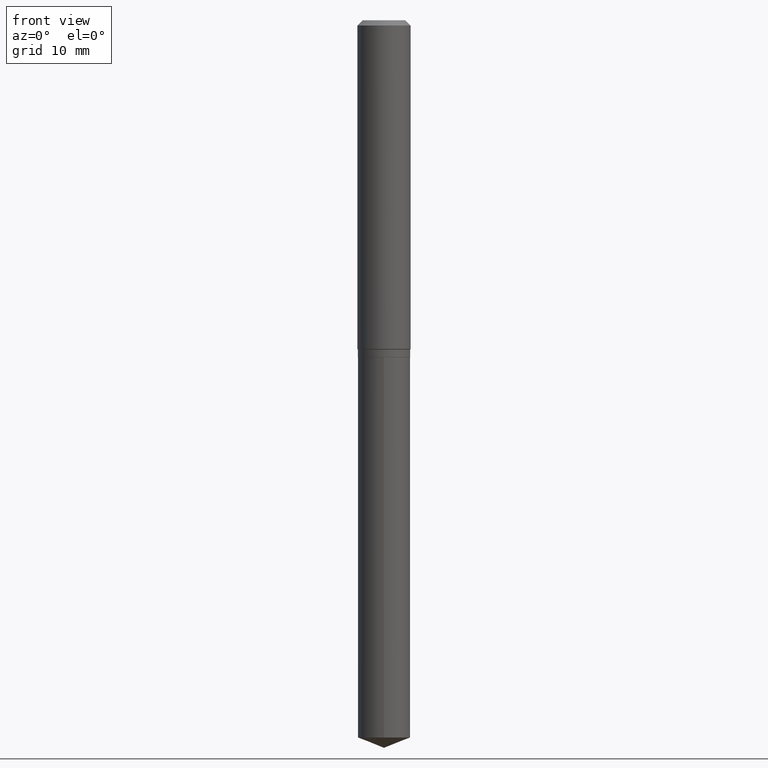
[diagram: clean part render]
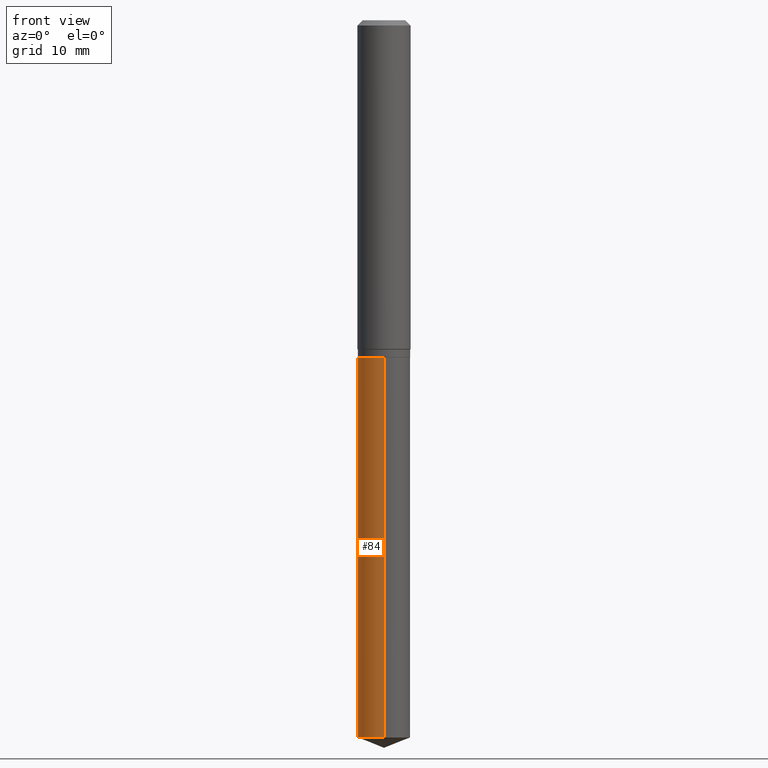
[diagram: same view with one face highlighted and labeled with its STEP entity id]
A machine part, front view. The second image highlights one B-rep face of the part: STEP entity #84.
In plain terms, the highlighted cylindrical surface (edge-blend (fillet) strip) has radius 2.9502 mm, axis along (-0, 0, 1).
Its self-contained STEP definition (entity closure, byte-faithful):
#5 = CARTESIAN_POINT ( 'NONE',  ( 8.252953875854342889E-16, 0.1161499999999947713, -1.495700000000000474 ) ) ;
#25 = ORIENTED_EDGE ( 'NONE', *, *, #165, .F. ) ;
#33 = FACE_OUTER_BOUND ( 'NONE', #212, .T. ) ;
#57 = VERTEX_POINT ( 'NONE', #472 ) ;
#61 = VECTOR ( 'NONE', #261, 39.37007874015748143 ) ;
#84 = ADVANCED_FACE ( 'NONE', ( #33 ), #259, .T. ) ;
#93 = EDGE_CURVE ( 'NONE', #203, #270, #405, .T. ) ;
#94 = CARTESIAN_POINT ( 'NONE',  ( 3.657687693411109493E-29, -5.222208638507693246E-15, -1.495700000000000029 ) ) ;
#95 = ORIENTED_EDGE ( 'NONE', *, *, #389, .T. ) ;
#101 = CARTESIAN_POINT ( 'NONE',  ( 3.657687693411109493E-29, -5.222208638507693246E-15, -1.495700000000000029 ) ) ;
#110 = VERTEX_POINT ( 'NONE', #190 ) ;
#134 = VECTOR ( 'NONE', #222, 39.37007874015748143 ) ;
#161 = CARTESIAN_POINT ( 'NONE',  ( -8.110711150132233597E-16, -0.1161500000000052213, -1.495699999999999807 ) ) ;
#165 = EDGE_CURVE ( 'NONE', #110, #203, #390, .T. ) ;
#190 = CARTESIAN_POINT ( 'NONE',  ( 8.252953875854339931E-16, 0.1161499999999888871, -3.182247298257326218 ) ) ;
#191 = CIRCLE ( 'NONE', #384, 0.1161500000000000032 ) ;
#203 = VERTEX_POINT ( 'NONE', #5 ) ;
#212 = EDGE_LOOP ( 'NONE', ( #25, #400, #95, #419 ) ) ;
#222 = DIRECTION ( 'NONE',  ( -2.445439244954803543E-29, 3.491523672207503899E-15, 1.000000000000000000 ) ) ;
#226 = LINE ( 'NONE', #433, #61 ) ;
#234 = AXIS2_PLACEMENT_3D ( 'NONE', #94, #436, #368 ) ;
#237 = DIRECTION ( 'NONE',  ( -2.445439244954803263E-29, 3.491523672207503504E-15, 1.000000000000000000 ) ) ;
#242 = EDGE_CURVE ( 'NONE', #110, #57, #191, .T. ) ;
#251 = DIRECTION ( 'NONE',  ( -2.445439244954803263E-29, 3.491523672207503504E-15, 1.000000000000000000 ) ) ;
#259 = CYLINDRICAL_SURFACE ( 'NONE', #430, 0.1161500000000000032 ) ;
#261 = DIRECTION ( 'NONE',  ( -2.445439244954803543E-29, 3.491523672207503899E-15, 1.000000000000000000 ) ) ;
#270 = VERTEX_POINT ( 'NONE', #161 ) ;
#276 = DIRECTION ( 'NONE',  ( -6.982962677686265922E-15, -1.000000000000000000, 2.351999994545211393E-15 ) ) ;
#307 = CARTESIAN_POINT ( 'NONE',  ( 8.252953875853927751E-16, 0.1161499999999947713, -1.495700000000000474 ) ) ;
#364 = CARTESIAN_POINT ( 'NONE',  ( 7.782036645042066556E-29, -1.111082845467075413E-14, -3.182247298257325330 ) ) ;
#368 = DIRECTION ( 'NONE',  ( -6.982962677686265922E-15, -1.000000000000000000, 2.351999994545211393E-15 ) ) ;
#384 = AXIS2_PLACEMENT_3D ( 'NONE', #364, #237, #441 ) ;
#389 = EDGE_CURVE ( 'NONE', #57, #270, #226, .T. ) ;
#390 = LINE ( 'NONE', #307, #134 ) ;
#400 = ORIENTED_EDGE ( 'NONE', *, *, #242, .T. ) ;
#405 = CIRCLE ( 'NONE', #234, 0.1161500000000000032 ) ;
#419 = ORIENTED_EDGE ( 'NONE', *, *, #93, .F. ) ;
#430 = AXIS2_PLACEMENT_3D ( 'NONE', #101, #251, #276 ) ;
#433 = CARTESIAN_POINT ( 'NONE',  ( -8.110711150132233597E-16, -0.1161500000000052213, -1.495699999999999807 ) ) ;
#436 = DIRECTION ( 'NONE',  ( -2.445439244954803263E-29, 3.491523672207503504E-15, 1.000000000000000000 ) ) ;
#441 = DIRECTION ( 'NONE',  ( -6.982962677686265922E-15, -1.000000000000000000, 4.703999989090422785E-15 ) ) ;
#472 = CARTESIAN_POINT ( 'NONE',  ( -8.110711150131819445E-16, -0.1161500000000111055, -3.182247298257324886 ) ) ;